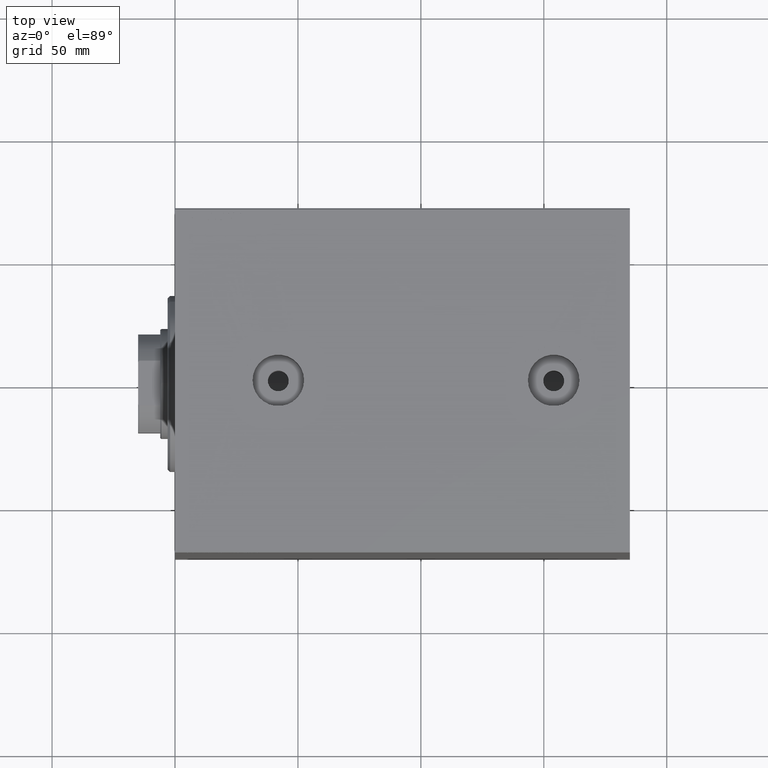
[diagram: clean part render]
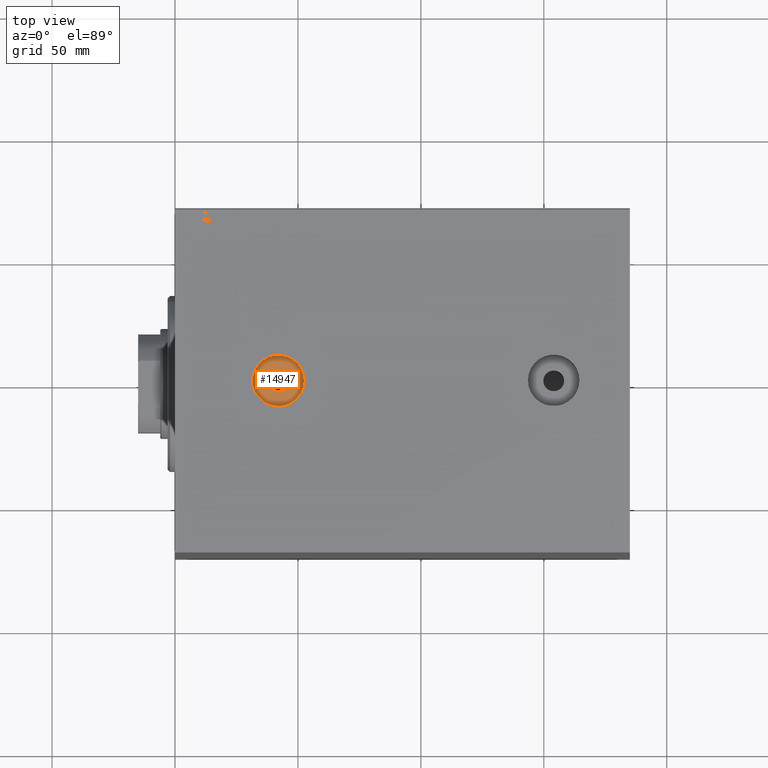
[diagram: same view with one face highlighted and labeled with its STEP entity id]
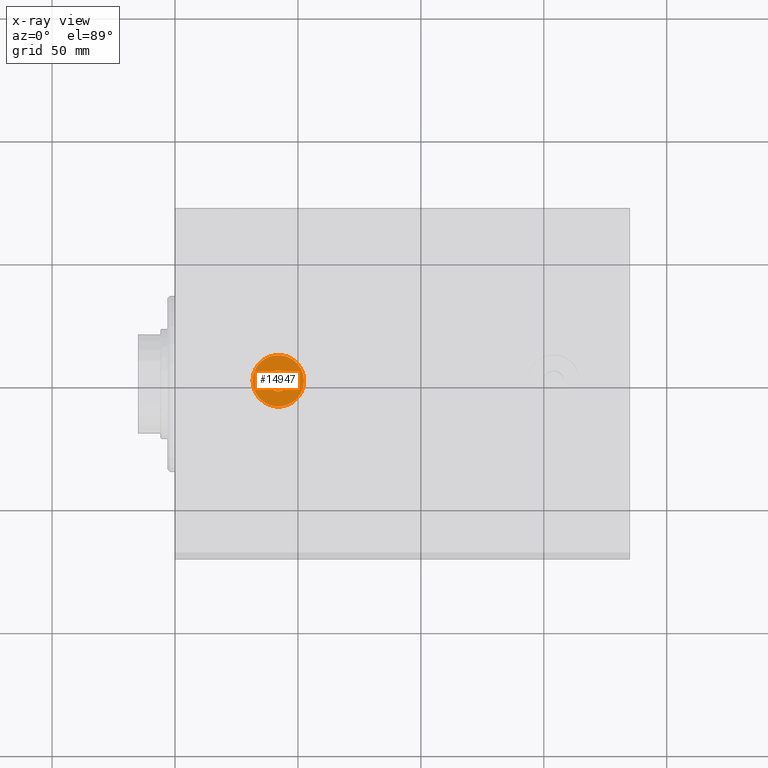
[diagram: x-ray of the same camera — body ghosted, the highlighted face saturated]
A machine part, top view. The second image highlights one B-rep face of the part: STEP entity #14947.
The next image is the same camera in x-ray: the body ghosted, the highlighted face saturated — about 0% of this face is hidden behind the body in this view.
In plain terms, the highlighted planar face has unit normal (0, 0, 1).
Its self-contained STEP definition (entity closure, byte-faithful):
#4552 = VERTEX_POINT ( 'NONE', #34797 ) ;
#5561 = AXIS2_PLACEMENT_3D ( 'NONE', #7596, #34135, #20541 ) ;
#5636 = CARTESIAN_POINT ( 'NONE',  ( 42.00000000000000000, -8.425799740458776865E-15, 71.73999999999998067 ) ) ;
#6403 = CARTESIAN_POINT ( 'NONE',  ( 42.00000000000000000, -8.425799740458776865E-15, 71.73999999999998067 ) ) ;
#7596 = CARTESIAN_POINT ( 'NONE',  ( 42.00000000000000000, -8.425799740458776865E-15, 71.73999999999998067 ) ) ;
#7682 = CIRCLE ( 'NONE', #5561, 10.47999999999999687 ) ;
#8190 = VERTEX_POINT ( 'NONE', #10101 ) ;
#9449 = EDGE_LOOP ( 'NONE', ( #12016, #35035 ) ) ;
#10101 = CARTESIAN_POINT ( 'NONE',  ( 46.25000000000000000, -8.425799740458776865E-15, 71.73999999999998067 ) ) ;
#10654 = AXIS2_PLACEMENT_3D ( 'NONE', #37674, #20721, #34739 ) ;
#11109 = CARTESIAN_POINT ( 'NONE',  ( 52.47999999999999687, -8.425799740458776865E-15, 71.73999999999998067 ) ) ;
#12016 = ORIENTED_EDGE ( 'NONE', *, *, #43258, .T. ) ;
#13078 = DIRECTION ( 'NONE',  ( 1.000000000000000000, 0.000000000000000000, 0.000000000000000000 ) ) ;
#14119 = DIRECTION ( 'NONE',  ( 1.000000000000000000, 0.000000000000000000, -0.000000000000000000 ) ) ;
#14947 = ADVANCED_FACE ( 'NONE', ( #23930, #17906 ), #27718, .T. ) ;
#16092 = DIRECTION ( 'NONE',  ( 0.000000000000000000, 0.000000000000000000, 1.000000000000000000 ) ) ;
#16798 = EDGE_CURVE ( 'NONE', #4552, #34747, #19095, .T. ) ;
#17687 = DIRECTION ( 'NONE',  ( 0.000000000000000000, 0.000000000000000000, 1.000000000000000000 ) ) ;
#17906 = FACE_OUTER_BOUND ( 'NONE', #9449, .T. ) ;
#18378 = AXIS2_PLACEMENT_3D ( 'NONE', #27290, #17687, #14119 ) ;
#18969 = EDGE_CURVE ( 'NONE', #8190, #22382, #36263, .T. ) ;
#19095 = CIRCLE ( 'NONE', #26233, 10.47999999999999687 ) ;
#20099 = DIRECTION ( 'NONE',  ( 1.000000000000000000, 0.000000000000000000, 0.000000000000000000 ) ) ;
#20541 = DIRECTION ( 'NONE',  ( 1.000000000000000000, 0.000000000000000000, 0.000000000000000000 ) ) ;
#20721 = DIRECTION ( 'NONE',  ( 0.000000000000000000, 0.000000000000000000, 1.000000000000000000 ) ) ;
#20845 = ORIENTED_EDGE ( 'NONE', *, *, #32290, .F. ) ;
#22382 = VERTEX_POINT ( 'NONE', #37168 ) ;
#23930 = FACE_BOUND ( 'NONE', #25338, .T. ) ;
#25338 = EDGE_LOOP ( 'NONE', ( #35037, #20845 ) ) ;
#26233 = AXIS2_PLACEMENT_3D ( 'NONE', #5636, #16092, #20099 ) ;
#27290 = CARTESIAN_POINT ( 'NONE',  ( 42.00000000000000000, -8.425799740458776865E-15, 71.73999999999998067 ) ) ;
#27718 = PLANE ( 'NONE',  #18378 ) ;
#32290 = EDGE_CURVE ( 'NONE', #22382, #8190, #35771, .T. ) ;
#34135 = DIRECTION ( 'NONE',  ( 0.000000000000000000, 0.000000000000000000, 1.000000000000000000 ) ) ;
#34739 = DIRECTION ( 'NONE',  ( 1.000000000000000000, 0.000000000000000000, 0.000000000000000000 ) ) ;
#34747 = VERTEX_POINT ( 'NONE', #11109 ) ;
#34797 = CARTESIAN_POINT ( 'NONE',  ( 31.52000000000000668, -7.142369894952351376E-15, 71.73999999999998067 ) ) ;
#35035 = ORIENTED_EDGE ( 'NONE', *, *, #16798, .T. ) ;
#35037 = ORIENTED_EDGE ( 'NONE', *, *, #18969, .F. ) ;
#35771 = CIRCLE ( 'NONE', #37912, 4.249999999999996447 ) ;
#36263 = CIRCLE ( 'NONE', #10654, 4.249999999999996447 ) ;
#37168 = CARTESIAN_POINT ( 'NONE',  ( 37.75000000000000711, -7.905324850821150908E-15, 71.73999999999998067 ) ) ;
#37674 = CARTESIAN_POINT ( 'NONE',  ( 42.00000000000000000, -8.425799740458776865E-15, 71.73999999999998067 ) ) ;
#37912 = AXIS2_PLACEMENT_3D ( 'NONE', #6403, #40717, #13078 ) ;
#40717 = DIRECTION ( 'NONE',  ( 0.000000000000000000, 0.000000000000000000, 1.000000000000000000 ) ) ;
#43258 = EDGE_CURVE ( 'NONE', #34747, #4552, #7682, .T. ) ;